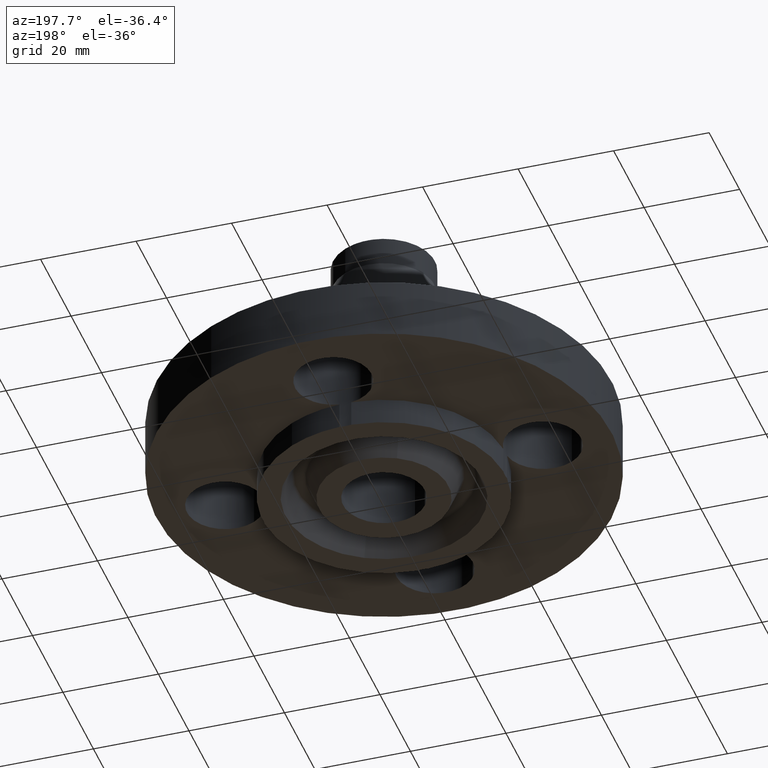
[diagram: clean part render]
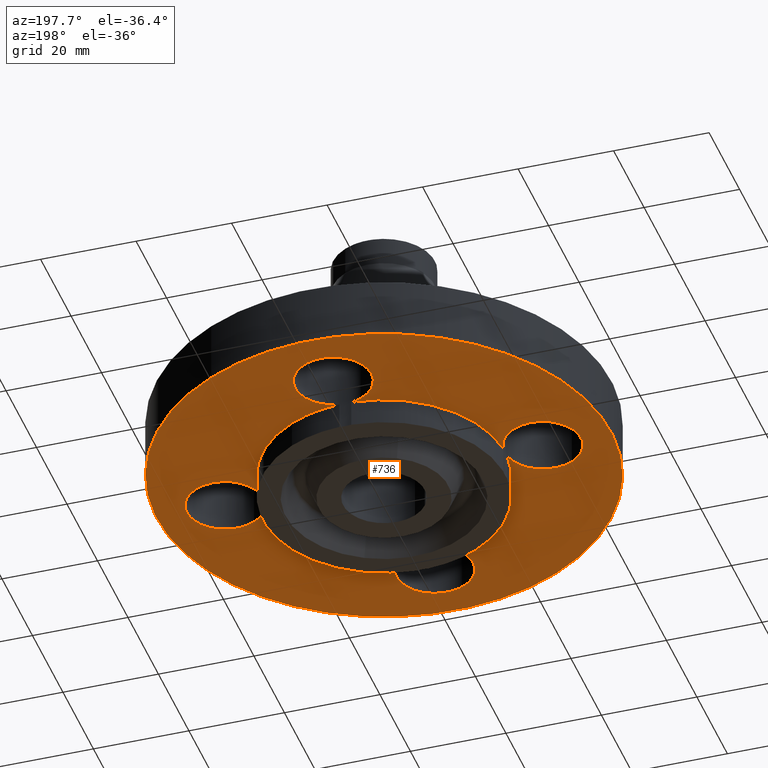
[diagram: same view with one face highlighted and labeled with its STEP entity id]
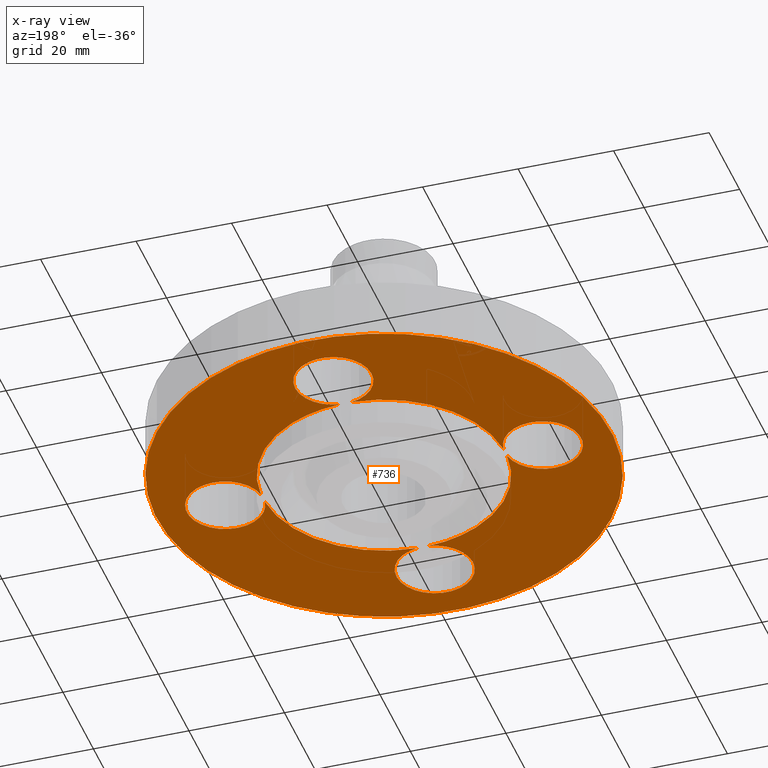
[diagram: x-ray of the same camera — body ghosted, the highlighted face saturated]
A machine part, auxiliary view. The second image highlights one B-rep face of the part: STEP entity #736.
The next image is the same camera in x-ray: the body ghosted, the highlighted face saturated — about 0% of this face is hidden behind the body in this view.
In plain terms, the highlighted planar face has unit normal (0, 0, -1).
Its self-contained STEP definition (entity closure, byte-faithful):
#51=AXIS2_PLACEMENT_3D('Circle Axis2P3D',#49,#50,$) ;
#85=AXIS2_PLACEMENT_3D('Circle Axis2P3D',#83,#84,$) ;
#113=AXIS2_PLACEMENT_3D('Circle Axis2P3D',#111,#112,$) ;
#146=AXIS2_PLACEMENT_3D('Circle Axis2P3D',#144,#145,$) ;
#177=AXIS2_PLACEMENT_3D('Circle Axis2P3D',#175,#176,$) ;
#212=AXIS2_PLACEMENT_3D('Circle Axis2P3D',#210,#211,$) ;
#520=AXIS2_PLACEMENT_3D('Circle Axis2P3D',#518,#519,$) ;
#539=AXIS2_PLACEMENT_3D('Circle Axis2P3D',#537,#538,$) ;
#581=AXIS2_PLACEMENT_3D('Circle Axis2P3D',#579,#580,$) ;
#600=AXIS2_PLACEMENT_3D('Circle Axis2P3D',#598,#599,$) ;
#633=AXIS2_PLACEMENT_3D('Circle Axis2P3D',#631,#632,$) ;
#653=AXIS2_PLACEMENT_3D('Plane Axis2P3D',#650,#651,#652) ;
#661=AXIS2_PLACEMENT_3D('Circle Axis2P3D',#659,#660,$) ;
#668=AXIS2_PLACEMENT_3D('Circle Axis2P3D',#666,#667,$) ;
#675=AXIS2_PLACEMENT_3D('Circle Axis2P3D',#673,#674,$) ;
#680=AXIS2_PLACEMENT_3D('Circle Axis2P3D',#678,#679,$) ;
#687=AXIS2_PLACEMENT_3D('Circle Axis2P3D',#685,#686,$) ;
#694=AXIS2_PLACEMENT_3D('Circle Axis2P3D',#692,#693,$) ;
#699=AXIS2_PLACEMENT_3D('Circle Axis2P3D',#697,#698,$) ;
#706=AXIS2_PLACEMENT_3D('Circle Axis2P3D',#704,#705,$) ;
#713=AXIS2_PLACEMENT_3D('Circle Axis2P3D',#711,#712,$) ;
#44=CARTESIAN_POINT('Vertex',(-0.276438506997,1.46101904467,0.)) ;
#49=CARTESIAN_POINT('Axis2P3D Location',(0.,1.31000000001,0.)) ;
#53=CARTESIAN_POINT('Vertex',(0.276438506997,1.15898095534,0.)) ;
#83=CARTESIAN_POINT('Axis2P3D Location',(0.,1.31000000001,0.)) ;
#87=CARTESIAN_POINT('Vertex',(0.0488269754871,0.998807251912,0.)) ;
#108=CARTESIAN_POINT('Vertex',(-0.0488269754871,0.998807251912,0.)) ;
#111=CARTESIAN_POINT('Axis2P3D Location',(0.,1.31000000001,0.)) ;
#144=CARTESIAN_POINT('Axis2P3D Location',(0.,0.,0.)) ;
#148=CARTESIAN_POINT('Vertex',(0.479425538606,0.877582561894,0.)) ;
#175=CARTESIAN_POINT('Axis2P3D Location',(0.,0.,0.)) ;
#179=CARTESIAN_POINT('Vertex',(-0.898922884886,-1.64546730355,0.)) ;
#181=CARTESIAN_POINT('Vertex',(0.898922884886,1.64546730355,0.)) ;
#210=CARTESIAN_POINT('Axis2P3D Location',(0.,0.,0.)) ;
#515=CARTESIAN_POINT('Vertex',(-0.479425538606,-0.877582561894,0.)) ;
#518=CARTESIAN_POINT('Axis2P3D Location',(0.,0.,0.)) ;
#522=CARTESIAN_POINT('Vertex',(-0.998807251912,-0.0488269754871,0.)) ;
#537=CARTESIAN_POINT('Axis2P3D Location',(0.,0.,0.)) ;
#541=CARTESIAN_POINT('Vertex',(-0.998807251912,0.0488269754871,0.)) ;
#576=CARTESIAN_POINT('Vertex',(0.998807251912,-0.0488269754871,0.)) ;
#579=CARTESIAN_POINT('Axis2P3D Location',(0.,0.,0.)) ;
#583=CARTESIAN_POINT('Vertex',(0.0488269754871,-0.998807251912,0.)) ;
#598=CARTESIAN_POINT('Axis2P3D Location',(0.,0.,0.)) ;
#602=CARTESIAN_POINT('Vertex',(-0.0488269754871,-0.998807251912,0.)) ;
#631=CARTESIAN_POINT('Axis2P3D Location',(0.,0.,0.)) ;
#635=CARTESIAN_POINT('Vertex',(0.998807251912,0.0488269754871,0.)) ;
#650=CARTESIAN_POINT('Axis2P3D Location',(0.,1.,0.)) ;
#659=CARTESIAN_POINT('Axis2P3D Location',(1.31000000001,0.,0.)) ;
#663=CARTESIAN_POINT('Vertex',(1.15898095534,-0.276438506997,0.)) ;
#666=CARTESIAN_POINT('Axis2P3D Location',(1.31000000001,-1.39870617276E-016,0.)) ;
#670=CARTESIAN_POINT('Vertex',(1.46101904467,0.276438506997,0.)) ;
#673=CARTESIAN_POINT('Axis2P3D Location',(1.31000000001,0.,0.)) ;
#678=CARTESIAN_POINT('Axis2P3D Location',(-1.31000000001,0.,0.)) ;
#682=CARTESIAN_POINT('Vertex',(-1.15898095534,0.276438506997,0.)) ;
#685=CARTESIAN_POINT('Axis2P3D Location',(-1.31000000001,-1.39870617276E-016,0.)) ;
#689=CARTESIAN_POINT('Vertex',(-1.46101904467,-0.276438506997,0.)) ;
#692=CARTESIAN_POINT('Axis2P3D Location',(-1.31000000001,0.,0.)) ;
#697=CARTESIAN_POINT('Axis2P3D Location',(1.74838271595E-016,-1.31000000001,0.)) ;
#701=CARTESIAN_POINT('Vertex',(-0.276438506997,-1.15898095534,0.)) ;
#704=CARTESIAN_POINT('Axis2P3D Location',(0.,-1.31000000001,0.)) ;
#708=CARTESIAN_POINT('Vertex',(0.276438506997,-1.46101904467,0.)) ;
#711=CARTESIAN_POINT('Axis2P3D Location',(1.74838271595E-016,-1.31000000001,0.)) ;
#50=DIRECTION('Axis2P3D Direction',(0.,-0.,-0.0393700787402)) ;
#84=DIRECTION('Axis2P3D Direction',(0.,-0.,-0.0393700787402)) ;
#112=DIRECTION('Axis2P3D Direction',(0.,-0.,-0.0393700787402)) ;
#145=DIRECTION('Axis2P3D Direction',(0.,0.,-0.0393700787402)) ;
#176=DIRECTION('Axis2P3D Direction',(0.,0.,-0.0393700787402)) ;
#211=DIRECTION('Axis2P3D Direction',(0.,0.,-0.0393700787402)) ;
#519=DIRECTION('Axis2P3D Direction',(0.,0.,-0.0393700787402)) ;
#538=DIRECTION('Axis2P3D Direction',(0.,0.,-0.0393700787402)) ;
#580=DIRECTION('Axis2P3D Direction',(0.,0.,-0.0393700787402)) ;
#599=DIRECTION('Axis2P3D Direction',(0.,0.,-0.0393700787402)) ;
#632=DIRECTION('Axis2P3D Direction',(0.,0.,-0.0393700787402)) ;
#651=DIRECTION('Axis2P3D Direction',(0.,0.,-0.0393700787402)) ;
#652=DIRECTION('Axis2P3D XDirection',(0.0393700787402,0.,0.)) ;
#660=DIRECTION('Axis2P3D Direction',(0.,0.,-0.0393700787402)) ;
#667=DIRECTION('Axis2P3D Direction',(0.,0.,-0.0393700787402)) ;
#674=DIRECTION('Axis2P3D Direction',(0.,0.,-0.0393700787402)) ;
#679=DIRECTION('Axis2P3D Direction',(0.,0.,-0.0393700787402)) ;
#686=DIRECTION('Axis2P3D Direction',(0.,0.,-0.0393700787402)) ;
#693=DIRECTION('Axis2P3D Direction',(0.,0.,-0.0393700787402)) ;
#698=DIRECTION('Axis2P3D Direction',(0.,0.,-0.0393700787402)) ;
#705=DIRECTION('Axis2P3D Direction',(0.,0.,-0.0393700787402)) ;
#712=DIRECTION('Axis2P3D Direction',(0.,0.,-0.0393700787402)) ;
#656=ORIENTED_EDGE('',*,*,#183,.T.) ;
#657=ORIENTED_EDGE('',*,*,#214,.T.) ;
#717=ORIENTED_EDGE('',*,*,#585,.F.) ;
#718=ORIENTED_EDGE('',*,*,#665,.F.) ;
#719=ORIENTED_EDGE('',*,*,#672,.F.) ;
#720=ORIENTED_EDGE('',*,*,#677,.F.) ;
#721=ORIENTED_EDGE('',*,*,#637,.F.) ;
#722=ORIENTED_EDGE('',*,*,#150,.F.) ;
#723=ORIENTED_EDGE('',*,*,#89,.F.) ;
#724=ORIENTED_EDGE('',*,*,#55,.F.) ;
#725=ORIENTED_EDGE('',*,*,#115,.F.) ;
#726=ORIENTED_EDGE('',*,*,#543,.F.) ;
#727=ORIENTED_EDGE('',*,*,#684,.F.) ;
#728=ORIENTED_EDGE('',*,*,#691,.F.) ;
#729=ORIENTED_EDGE('',*,*,#696,.F.) ;
#730=ORIENTED_EDGE('',*,*,#524,.F.) ;
#731=ORIENTED_EDGE('',*,*,#604,.F.) ;
#732=ORIENTED_EDGE('',*,*,#703,.F.) ;
#733=ORIENTED_EDGE('',*,*,#710,.F.) ;
#734=ORIENTED_EDGE('',*,*,#715,.F.) ;
#735=FACE_BOUND('',#716,.T.) ;
#736=ADVANCED_FACE('PartBody',(#658,#735),#654,.T.) ;
#52=CIRCLE('generated circle',#51,0.315000000001) ;
#86=CIRCLE('generated circle',#85,0.315000000001) ;
#114=CIRCLE('generated circle',#113,0.315000000001) ;
#147=CIRCLE('generated circle',#146,1.) ;
#178=CIRCLE('generated circle',#177,1.87500000001) ;
#213=CIRCLE('generated circle',#212,1.87500000001) ;
#521=CIRCLE('generated circle',#520,1.) ;
#540=CIRCLE('generated circle',#539,1.) ;
#582=CIRCLE('generated circle',#581,1.) ;
#601=CIRCLE('generated circle',#600,1.) ;
#634=CIRCLE('generated circle',#633,1.) ;
#662=CIRCLE('generated circle',#661,0.315000000001) ;
#669=CIRCLE('generated circle',#668,0.315000000001) ;
#676=CIRCLE('generated circle',#675,0.315000000001) ;
#681=CIRCLE('generated circle',#680,0.315000000001) ;
#688=CIRCLE('generated circle',#687,0.315000000001) ;
#695=CIRCLE('generated circle',#694,0.315000000001) ;
#700=CIRCLE('generated circle',#699,0.315000000001) ;
#707=CIRCLE('generated circle',#706,0.315000000001) ;
#714=CIRCLE('generated circle',#713,0.315000000001) ;
#55=EDGE_CURVE('',#45,#54,#52,.T.) ;
#89=EDGE_CURVE('',#54,#88,#86,.T.) ;
#115=EDGE_CURVE('',#109,#45,#114,.T.) ;
#150=EDGE_CURVE('',#88,#149,#147,.T.) ;
#183=EDGE_CURVE('',#180,#182,#178,.T.) ;
#214=EDGE_CURVE('',#182,#180,#213,.T.) ;
#524=EDGE_CURVE('',#516,#523,#521,.T.) ;
#543=EDGE_CURVE('',#542,#109,#540,.T.) ;
#585=EDGE_CURVE('',#577,#584,#582,.T.) ;
#604=EDGE_CURVE('',#603,#516,#601,.T.) ;
#637=EDGE_CURVE('',#149,#636,#634,.T.) ;
#665=EDGE_CURVE('',#664,#577,#662,.T.) ;
#672=EDGE_CURVE('',#671,#664,#669,.T.) ;
#677=EDGE_CURVE('',#636,#671,#676,.T.) ;
#684=EDGE_CURVE('',#683,#542,#681,.T.) ;
#691=EDGE_CURVE('',#690,#683,#688,.T.) ;
#696=EDGE_CURVE('',#523,#690,#695,.T.) ;
#703=EDGE_CURVE('',#702,#603,#700,.T.) ;
#710=EDGE_CURVE('',#709,#702,#707,.T.) ;
#715=EDGE_CURVE('',#584,#709,#714,.T.) ;
#655=EDGE_LOOP('',(#656,#657)) ;
#716=EDGE_LOOP('',(#717,#718,#719,#720,#721,#722,#723,#724,#725,#726,#727,#728,#729,#730,#731,#732,#733,#734)) ;
#658=FACE_OUTER_BOUND('',#655,.T.) ;
#654=PLANE('',#653) ;
#45=VERTEX_POINT('',#44) ;
#54=VERTEX_POINT('',#53) ;
#88=VERTEX_POINT('',#87) ;
#109=VERTEX_POINT('',#108) ;
#149=VERTEX_POINT('',#148) ;
#180=VERTEX_POINT('',#179) ;
#182=VERTEX_POINT('',#181) ;
#516=VERTEX_POINT('',#515) ;
#523=VERTEX_POINT('',#522) ;
#542=VERTEX_POINT('',#541) ;
#577=VERTEX_POINT('',#576) ;
#584=VERTEX_POINT('',#583) ;
#603=VERTEX_POINT('',#602) ;
#636=VERTEX_POINT('',#635) ;
#664=VERTEX_POINT('',#663) ;
#671=VERTEX_POINT('',#670) ;
#683=VERTEX_POINT('',#682) ;
#690=VERTEX_POINT('',#689) ;
#702=VERTEX_POINT('',#701) ;
#709=VERTEX_POINT('',#708) ;